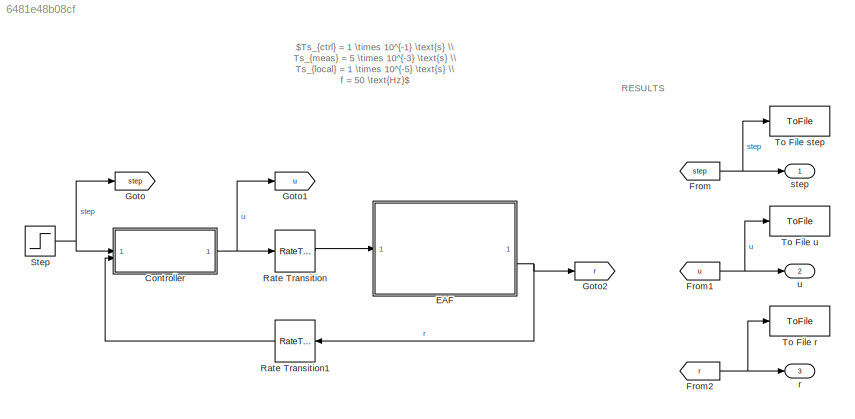
MODEL slx_6481e48b08cf
KIND model
CONFIG AbsTol = auto
CONFIG EnableMultiTasking = off
CONFIG FixedStep = Ts_local
CONFIG MaxStep = auto
CONFIG MinStep = auto
CONFIG RelTol = 1e-4
CONFIG SampleTimeConstraint = Unconstrained
CONFIG SolverName = ode14x
CONFIG StartTime = 0.0
CONFIG StopTime = 70
WORKSPACE source: mxarray member
WORKSPACE CtrlChoice: string (value not decoded)
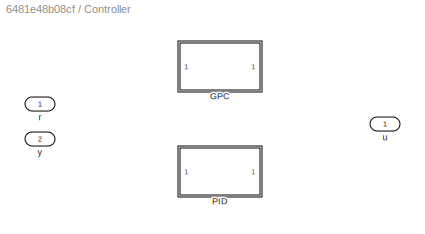
BLOCK [SubSystem] Controller
  Variant = on
BLOCK [ModelReference] Controller/GPC
  ModelNameDialog = GPC.slx
  ModelReferenceVersion = 1.203
  PortSchema = {"entries":[{"content":{"sides":[{"content":{"connectorIds":["In2","In1"]},"type":"ConnectorPlacement.EquallySpacedRectSide","uuid":"c107f1c2-3547-45d9-8105-1f531098cad9"},{"content":{"connectorIds":["Out1"],"side":"RIGHT"},"type":"ConnectorPlacement.EquallySpacedRectSide","uuid":"edcbd001-1fd9-492d-b847-8c21cda39726"},{"content":{"side":"TOP"},"type":"ConnectorPlacement.EquallySpacedRectSide","uu...<+228ch>
  VariantControl = CtrlChoice == "GPC"
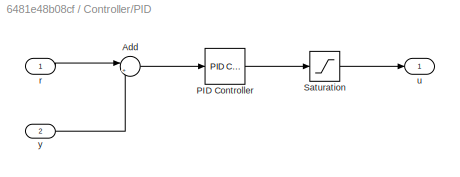
BLOCK [SubSystem] Controller/PID
  VariantControl = CtrlChoice == "PID"
BLOCK [Sum] Controller/PID/Add
  Inputs = |+-
BLOCK [Reference] Controller/PID/PID Controller  REF=slpidlib/PID Controller
  LibrarySourceBlock = simulink/Continuous/PID Controller
  SourceBlock = slpidlib/PID Controller
  SourceType = PID 1dof
BLOCK [Saturate] Controller/PID/Saturation
  LowerLimit = -1.08
  UpperLimit = 1.12
BLOCK [Inport] Controller/PID/r
  NameLocation = left
BLOCK [Outport] Controller/PID/u
  NameLocation = right
BLOCK [Inport] Controller/PID/y
  NameLocation = left
  Port = 2
BLOCK [Inport] Controller/r
  NameLocation = left
BLOCK [Outport] Controller/u
BLOCK [Inport] Controller/y
  NameLocation = left
  Port = 2
BLOCK [ModelReference] EAF
  ModelNameDialog = EAF.slx
  ModelReferenceVersion = 1.76
BLOCK [From] From
  GotoTag = step
BLOCK [From] From1
  GotoTag = u
BLOCK [From] From2
  GotoTag = r
BLOCK [Goto] Goto
  GotoTag = step
BLOCK [Goto] Goto1
  GotoTag = u
BLOCK [Goto] Goto2
  GotoTag = r
BLOCK [RateTransition] Rate Transition
  InitialCondition = u_b
  OutPortSampleTime = Ts_local
BLOCK [RateTransition] Rate Transition1
  NameLocation = top
  OutPortSampleTime = Ts_ctrl
BLOCK [Step] Step
  After = [0.025 0.02 0.075]
  Before = [0.025 0.01 0.075]
  SampleTime = Ts_ctrl
  Time = 20
BLOCK [ToFile] To File r
  Filename = r.mat
  MatrixName = r
  SaveFormat = Timeseries
BLOCK [ToFile] To File step
  Filename = step.mat
  MatrixName = step
  SaveFormat = Timeseries
BLOCK [ToFile] To File u
  Filename = u.mat
  MatrixName = u
  SaveFormat = Timeseries
BLOCK [Outport] r
  Port = 3
BLOCK [Outport] step
BLOCK [Outport] u
  Port = 2
ANNOTATION (root): $Ts_{ctrl} = 1 \times 10^{-1} \text{s} \\ Ts_{meas} = 5 \times 10^{-3} \text{s} \\ Ts_{local} = 1 \times 10^{-5} \text{s} \\ f = 50 \text{Hz}$
ANNOTATION (root): RESULTS
LINE Controller/PID/Add:1 -> Controller/PID/PID Controller:1
LINE Controller/PID/PID Controller:1 -> Controller/PID/Saturation:1
LINE Controller/PID/Saturation:1 -> Controller/PID/u:1
LINE Controller/PID/r:1 -> Controller/PID/Add:1
LINE Controller/PID/y:1 -> Controller/PID/Add:2
NET Controller:1 -> Goto1:1, Rate Transition:1
NET EAF:2 -> Goto2:1, Rate Transition1:1
NET From1:1 -> To File u:1, u:1
NET From2:1 -> To File r:1, r:1
NET From:1 -> To File step:1, step:1
LINE Rate Transition1:1 -> Controller:2
LINE Rate Transition:1 -> EAF:1
NET Step:1 -> Controller:1, Goto:1
note: NET lines group one-source signal fan-out (src -> all destinations, sorted); 1:1 wires keep LINE
